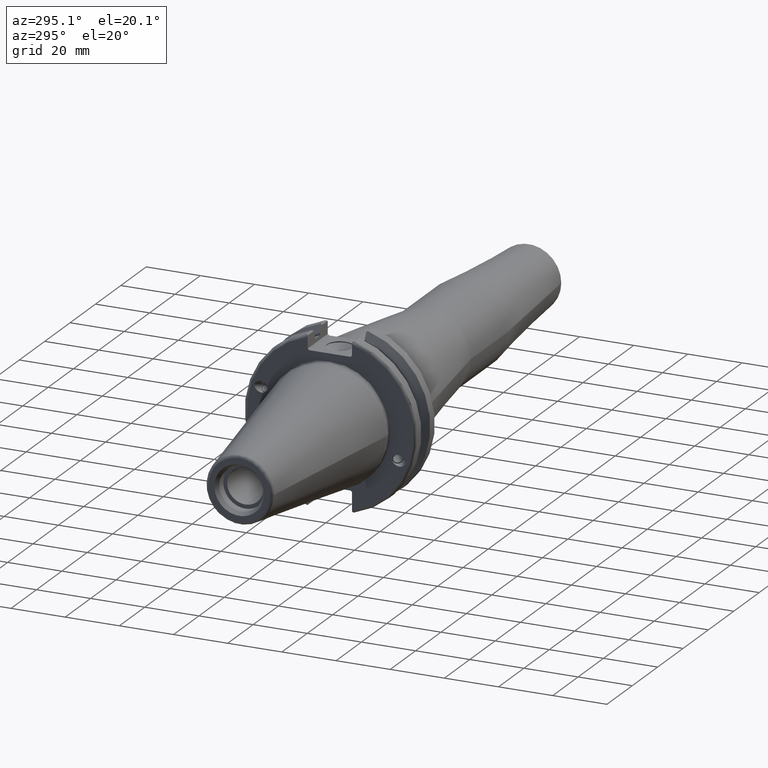
[diagram: clean part render]
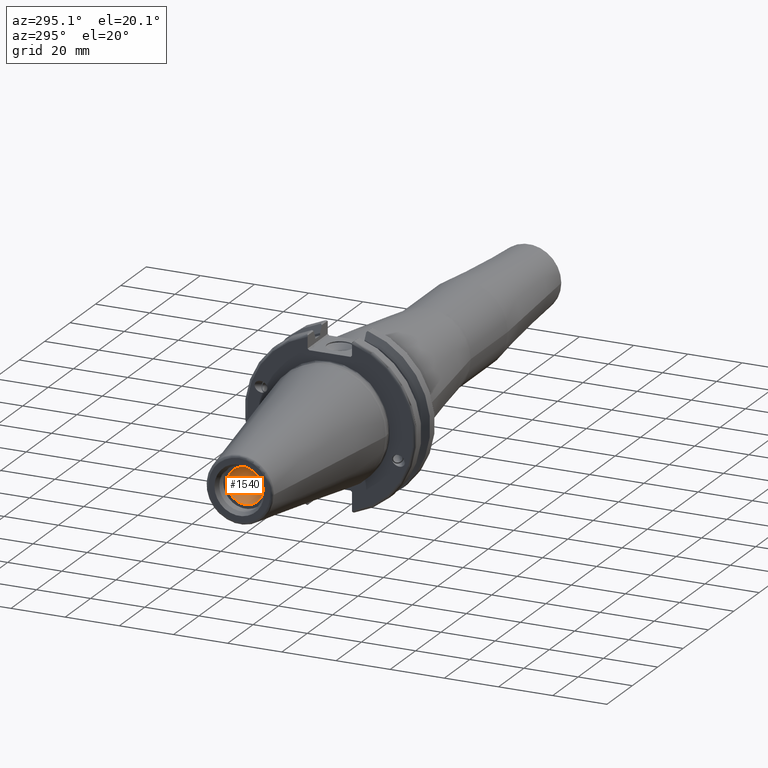
[diagram: same view with one face highlighted and labeled with its STEP entity id]
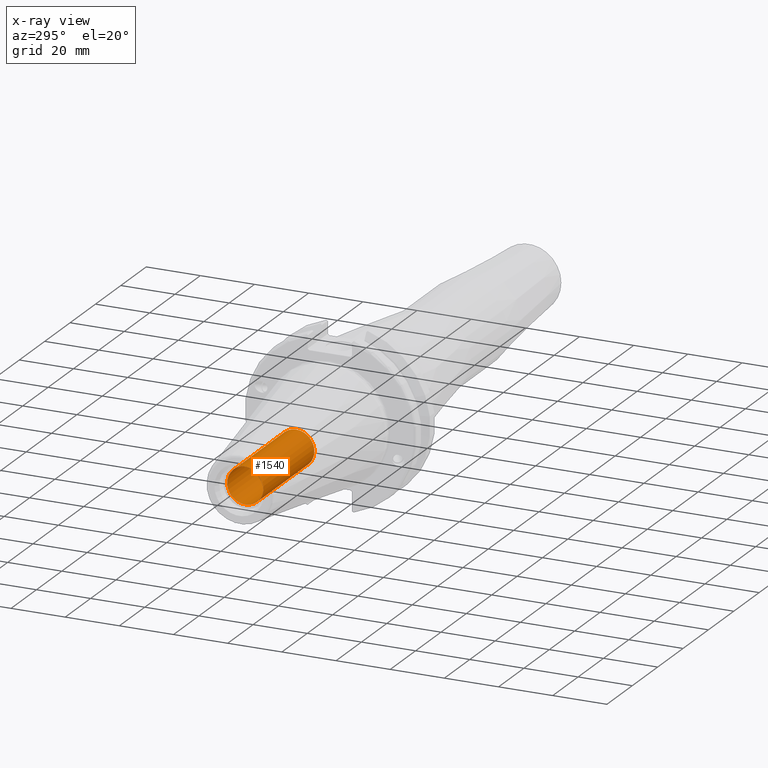
[diagram: x-ray of the same camera — body ghosted, the highlighted face saturated]
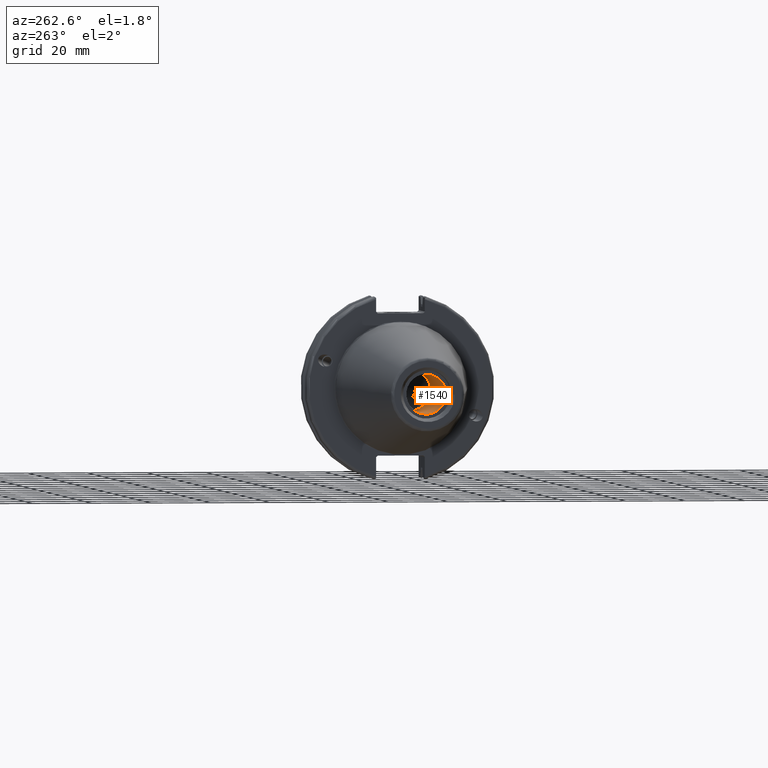
[diagram: same view with one face highlighted and labeled with its STEP entity id]
A machine part, auxiliary view. The second image highlights one B-rep face of the part: STEP entity #1540.
The next image is the same camera in x-ray: the body ghosted, the highlighted face saturated — about 0% of this face is hidden behind the body in this view.
A second angle (auxiliary view) of the same face is appended — the face is thin or edge-on in the first view.
In plain terms, the highlighted cylindrical surface (bore or boss wall) has radius 6.6929 mm, axis along (-1, 0, 0).
Its self-contained STEP definition (entity closure, byte-faithful):
#148=CYLINDRICAL_SURFACE('',#1668,6.6929);
#186=FACE_OUTER_BOUND('',#281,.T.);
#281=EDGE_LOOP('',(#1086,#1087,#1088,#1089));
#384=LINE('',#2422,#484);
#484=VECTOR('',#1892,6.6929);
#585=CIRCLE('',#1667,6.6929);
#586=CIRCLE('',#1669,6.6929);
#664=VERTEX_POINT('',#2416);
#665=VERTEX_POINT('',#2420);
#827=EDGE_CURVE('',#664,#664,#585,.T.);
#829=EDGE_CURVE('',#665,#665,#586,.T.);
#830=EDGE_CURVE('',#665,#664,#384,.T.);
#1086=ORIENTED_EDGE('',*,*,#829,.F.);
#1087=ORIENTED_EDGE('',*,*,#830,.T.);
#1088=ORIENTED_EDGE('',*,*,#827,.F.);
#1089=ORIENTED_EDGE('',*,*,#830,.F.);
#1540=ADVANCED_FACE('',(#186),#148,.F.);
#1667=AXIS2_PLACEMENT_3D('',#2417,#1885,#1886);
#1668=AXIS2_PLACEMENT_3D('',#2419,#1888,#1889);
#1669=AXIS2_PLACEMENT_3D('',#2421,#1890,#1891);
#1885=DIRECTION('center_axis',(-1.,0.,0.));
#1886=DIRECTION('ref_axis',(0.,0.,1.));
#1888=DIRECTION('center_axis',(-1.,0.,0.));
#1889=DIRECTION('ref_axis',(0.,0.,1.));
#1890=DIRECTION('center_axis',(1.,0.,0.));
#1891=DIRECTION('ref_axis',(0.,0.,1.));
#1892=DIRECTION('',(1.,0.,0.));
#2416=CARTESIAN_POINT('',(-23.25,-8.19643856201332E-16,-6.6929));
#2417=CARTESIAN_POINT('Origin',(-23.25,0.,0.));
#2419=CARTESIAN_POINT('Origin',(-45.75,0.,0.));
#2420=CARTESIAN_POINT('',(-63.45,8.19643856201332E-16,-6.6929));
#2421=CARTESIAN_POINT('Origin',(-63.45,0.,0.));
#2422=CARTESIAN_POINT('',(-45.75,-8.19643856201332E-16,-6.6929));